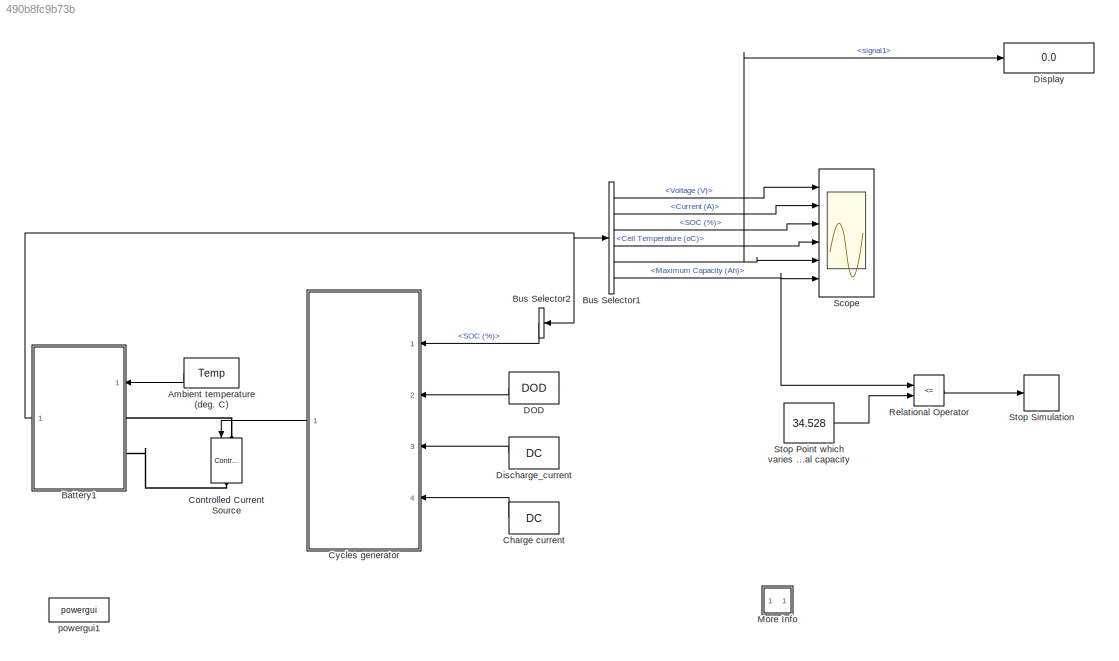
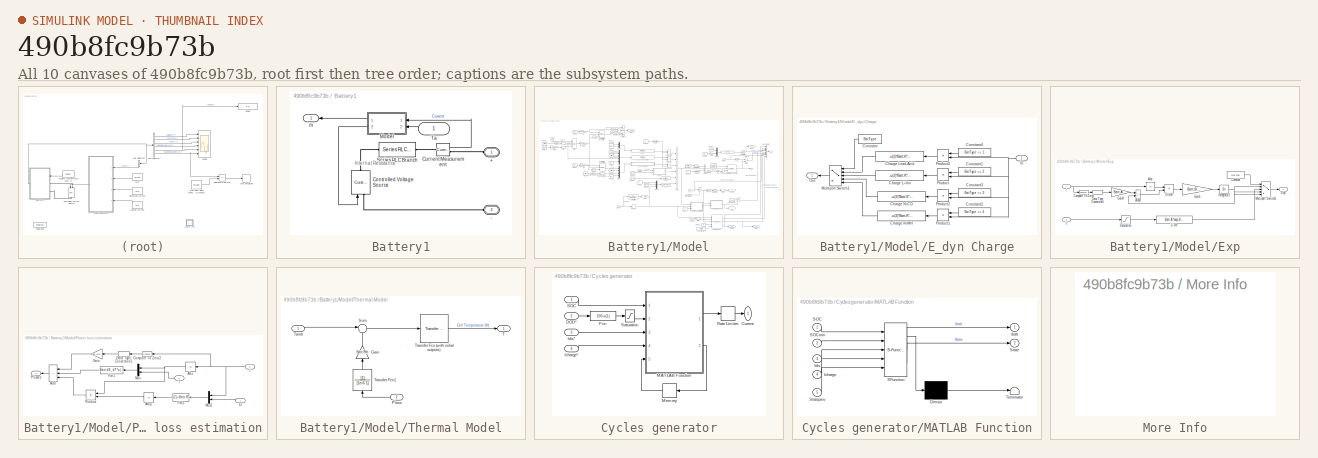
[diagram: thumbnail index - all 10 canvases of the model, root first then tree order]
MODEL slx_490b8fc9b73b
KIND model
CONFIG AbsTol = auto
CONFIG EnableMultiTasking = on
CONFIG FixedStep = auto
CONFIG MaxStep = auto
CONFIG MinStep = auto
CONFIG RelTol = 1e-3
CONFIG SampleTimeConstraint = Unconstrained
CONFIG SolverName = ode23tb
CONFIG StartTime = 0.0
CONFIG StopTime = inf
BLOCK [Constant] Ambient temperature (deg. C)
  NameLocation = top
  Value = Temp
BLOCK [SubSystem] Battery1
  AncestorBlock = spsBatteryLib/Battery
  CloseFcn = sps_rtmsupport('CloseFcn',gcbh);
  CopyFcn = sps_rtmsupport('CopyFcn',gcbh);
  DeleteFcn = sps_rtmsupport('DeleteFcn',gcbh);
  DialogController = POWERSYS.PowerSysDialog
  InitFcn = BatteryCback(gcb,1)
  LoadFcn = sps_rtmsupport('LoadFcn',gcbh); BatteryLoadFcn(gcb)
  ModelCloseFcn = sps_rtmsupport('ModelCloseFcn',gcbh);
  NameChangeFcn = sps_rtmsupport('NameChangeFcn',gcbh);
  OpenFcn = sps_rtmsupport('OpenFcn',gcbh, [1,2,3,4,9,18]);
  Ports = [1, 1, 0, 0, 0, 2]
  PostSaveFcn = sps_rtmsupport('PostSaveFcn',gcbh);
  PreCopyFcn = sps_rtmsupport('PreCopyFcn',gcbh);
  PreDeleteFcn = sps_rtmsupport('PreDeleteFcn',gcbh);
  PreSaveFcn = sps_rtmsupport('PreSaveFcn',gcbh);
  RequestExecContextInheritance = off
  StartFcn = sps_rtmsupport('StartFcn',gcbh);
  StopFcn = sps_rtmsupport('StopFcn',gcbh);
  UndoDeleteFcn = sps_rtmsupport('UndoDeleteFcn',gcbh);
BLOCK [PMIOPort] Battery1/+
  NameLocation = top
  Side = Left
  Tag = PMCPort
BLOCK [PMIOPort] Battery1/-
  NameLocation = top
  Port = 2
  Side = Left
  Tag = PMCPort
BLOCK [Reference] Battery1/Controlled Voltage Source  REF=spsControlledVoltageSourceLib/Controlled Voltage Source
  NameLocation = right
  Ports = [1, 0, 0, 0, 0, 1, 1]
  SourceBlock = spsControlledVoltageSourceLib/Controlled Voltage Source
  SourceProductBaseCode = PS
  SourceType = Controlled Voltage Source
BLOCK [Reference] Battery1/Current Measurement  REF=spsCurrentMeasurementLib/Current Measurement
  Ports = [0, 1, 0, 0, 0, 1, 1]
  SourceBlock = spsCurrentMeasurementLib/Current Measurement
  SourceProductBaseCode = PS
  SourceType = Current Measurement
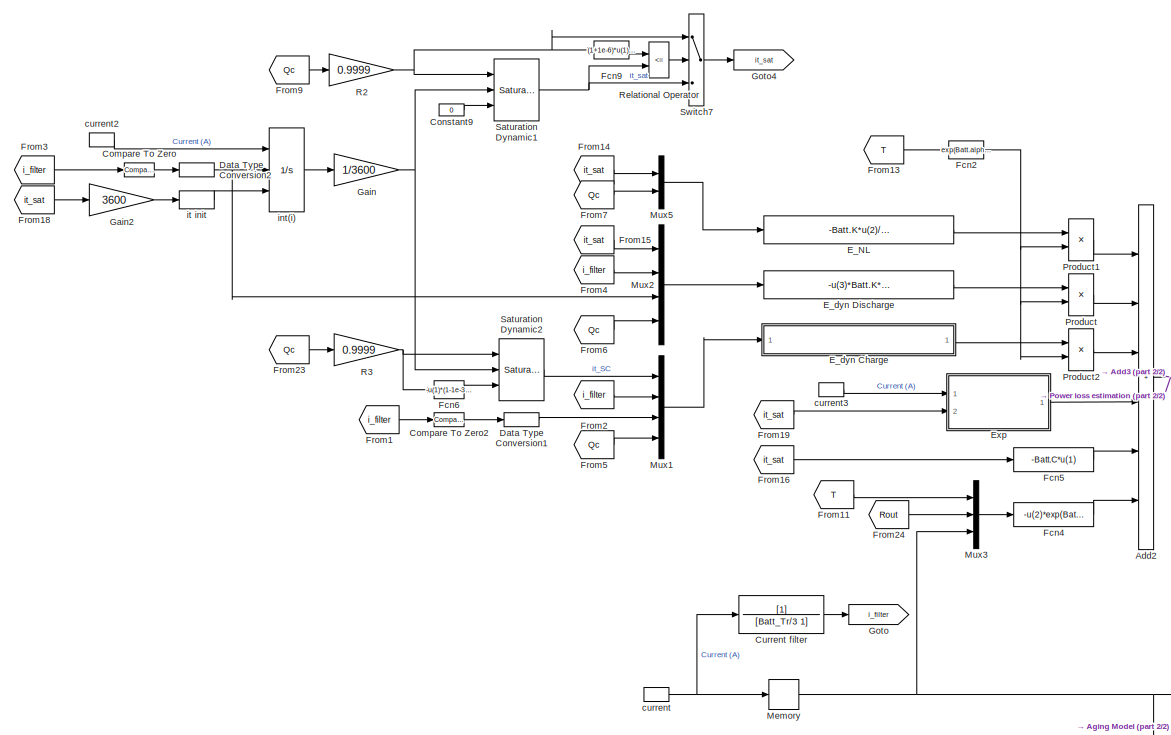
[diagram: Battery1/Model - part 1/2, left side, full height]
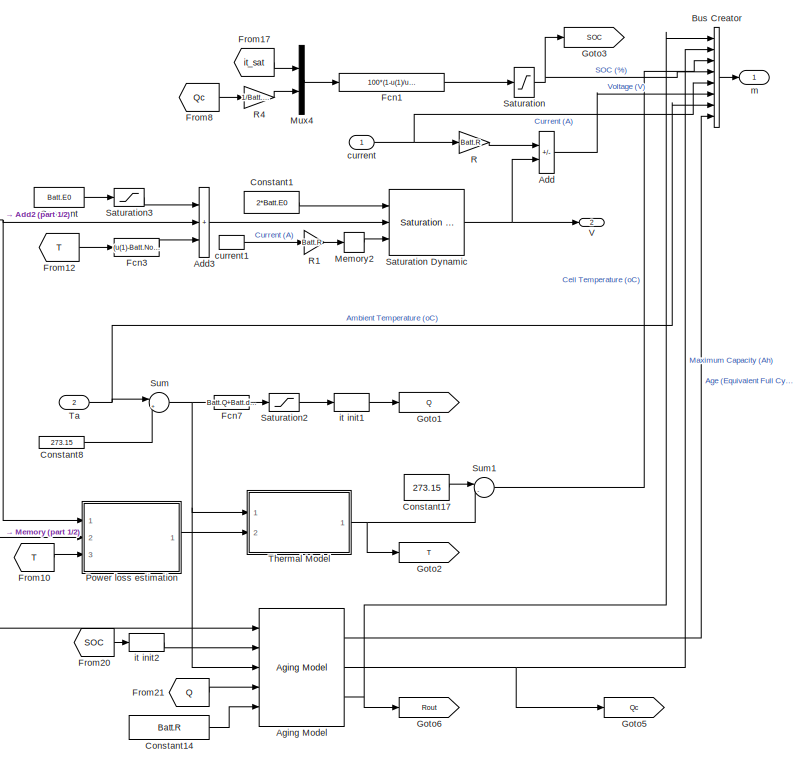
[diagram: Battery1/Model - part 2/2, right side, full height]
BLOCK [SubSystem] Battery1/Model
  AncestorBlock = spsBatteryModel/Continuous thermal aging
  NameLocation = top
  Ports = [2, 2]
  RequestExecContextInheritance = off
BLOCK [Sum] Battery1/Model/Add
  IconShape = rectangular
  Inputs = -+
  Ports = [2, 1]
BLOCK [Sum] Battery1/Model/Add2
  IconShape = rectangular
  Inputs = ++++++
  Ports = [6, 1]
BLOCK [Sum] Battery1/Model/Add3
  IconShape = rectangular
  Inputs = +++
  Ports = [3, 1]
BLOCK [Reference] Battery1/Model/Aging Model  REF=spsBatteryModel/Aging Model
  Ports = [5, 3]
  SourceBlock = spsBatteryModel/Aging Model
  SourceProductBaseCode = PS
  SourceType = SubSystem
BLOCK [BusCreator] Battery1/Model/Bus Creator
  DisplayOption = bar
  InheritFromInputs = on
  Inputs = 8
  Ports = [8, 1]
BLOCK [Reference] Battery1/Model/Compare To Zero  REF=simulink/Logic and Bit
Operations/Compare
To Zero
  Ports = [1, 1]
  SourceBlock = simulink/Logic and Bit\nOperations/Compare\nTo Zero
  SourceProductBaseCode = SL
  SourceType = Compare To Zero
BLOCK [Reference] Battery1/Model/Compare To Zero2  REF=simulink/Logic and Bit
Operations/Compare
To Zero
  Ports = [1, 1]
  SourceBlock = simulink/Logic and Bit\nOperations/Compare\nTo Zero
  SourceProductBaseCode = SL
  SourceType = Compare To Zero
BLOCK [Constant] Battery1/Model/Constant
  NameLocation = top
  Value = Batt.E0
BLOCK [Constant] Battery1/Model/Constant1
  NameLocation = top
  Value = 2*Batt.E0
BLOCK [Constant] Battery1/Model/Constant14
  Value = Batt.R
BLOCK [Constant] Battery1/Model/Constant17
  Value = 273.15
BLOCK [Constant] Battery1/Model/Constant8
  Value = 273.15
BLOCK [Constant] Battery1/Model/Constant9
  Value = 0
BLOCK [TransferFcn] Battery1/Model/Current filter
  Denominator = [Batt_Tr/3 1]
BLOCK [DataTypeConversion] Battery1/Model/Data Type Conversion1
  RndMeth = Floor
  SaturateOnIntegerOverflow = off
BLOCK [DataTypeConversion] Battery1/Model/Data Type Conversion2
  RndMeth = Floor
  SaturateOnIntegerOverflow = off
BLOCK [Fcn] Battery1/Model/E_NL
  Expr = -Batt.K*u(2)/(u(2)-u(1))*u(1)
  NameLocation = top
BLOCK [SubSystem] Battery1/Model/E_dyn Charge
  NameLocation = top
  Ports = [1, 1]
  RequestExecContextInheritance = off
BLOCK [Fcn] Battery1/Model/E_dyn Charge/Charge Lead-Acid
  Expr = -u(3)*Batt.K*u(2)*(Batt.Q/(u(1)+Batt.Q*Batt.kc))
BLOCK [Fcn] Battery1/Model/E_dyn Charge/Charge Li-Ion
  Expr = -u(3)*Batt.K*u(2)*u(4)/(u(1)+u(4)*Batt.kc)
BLOCK [Fcn] Battery1/Model/E_dyn Charge/Charge NiCD
  Expr = -u(3)*Batt.K*u(2)*(Batt.Q/(abs(u(1))+Batt.Q*Batt.kc))
BLOCK [Fcn] Battery1/Model/E_dyn Charge/Charge NiMH
  Expr = -u(3)*Batt.K*u(2)*(Batt.Q/(abs(u(1))+Batt.Q*Batt.kc))
BLOCK [Constant] Battery1/Model/E_dyn Charge/Constant
  NameLocation = top
  Value = BatType
BLOCK [Constant] Battery1/Model/E_dyn Charge/Constant1
  NameLocation = top
  OutDataTypeStr = double
  Value = BatType == 2
BLOCK [Constant] Battery1/Model/E_dyn Charge/Constant2
  NameLocation = top
  OutDataTypeStr = double
  Value = BatType == 4
BLOCK [Constant] Battery1/Model/E_dyn Charge/Constant3
  NameLocation = top
  OutDataTypeStr = double
  Value = BatType == 3
BLOCK [Constant] Battery1/Model/E_dyn Charge/Constant4
  NameLocation = top
  OutDataTypeStr = double
  Value = BatType == 1
BLOCK [Inport] Battery1/Model/E_dyn Charge/In
BLOCK [MultiPortSwitch] Battery1/Model/E_dyn Charge/Multiport Switch1
  InputSameDT = off
  Inputs = 4
  NameLocation = top
  Ports = [5, 1]
  SaturateOnIntegerOverflow = off
BLOCK [Outport] Battery1/Model/E_dyn Charge/Out
  VectorParamsAs1DForOutWhenUnconnected = off
BLOCK [Product] Battery1/Model/E_dyn Charge/Product
  NameLocation = top
  Ports = [2, 1]
  RndMeth = Zero
BLOCK [Product] Battery1/Model/E_dyn Charge/Product1
  NameLocation = top
  Ports = [2, 1]
  RndMeth = Zero
BLOCK [Product] Battery1/Model/E_dyn Charge/Product2
  NameLocation = top
  Ports = [2, 1]
  RndMeth = Zero
BLOCK [Product] Battery1/Model/E_dyn Charge/Product3
  NameLocation = top
  Ports = [2, 1]
  RndMeth = Zero
BLOCK [Fcn] Battery1/Model/E_dyn Discharge
  Expr = -u(3)*Batt.K*u(2)*u(4)/(u(4)-u(1))
  NameLocation = top
BLOCK [SubSystem] Battery1/Model/Exp
  NameLocation = top
  Ports = [2, 1]
  RequestExecContextInheritance = off
BLOCK [Abs] Battery1/Model/Exp/Abs
  SaturateOnIntegerOverflow = off
BLOCK [Sum] Battery1/Model/Exp/Add3
  IconShape = rectangular
  Inputs = +-
  Ports = [2, 1]
BLOCK [Reference] Battery1/Model/Exp/Compare To Zero2  REF=simulink/Logic and Bit
Operations/Compare
To Zero
  Ports = [1, 1]
  SourceBlock = simulink/Logic and Bit\nOperations/Compare\nTo Zero
  SourceProductBaseCode = SL
  SourceType = Compare To Zero
BLOCK [Constant] Battery1/Model/Exp/Constant
  Value = BatType
BLOCK [DataTypeConversion] Battery1/Model/Exp/Data Type Conversion1
  RndMeth = Floor
  SaturateOnIntegerOverflow = off
BLOCK [Product] Battery1/Model/Exp/Divide
  Inputs = **
  Ports = [2, 1]
BLOCK [Outport] Battery1/Model/Exp/Exp
  NameLocation = top
  VectorParamsAs1DForOutWhenUnconnected = off
BLOCK [Gain] Battery1/Model/Exp/Gain1
  Gain = Batt.B/3600
  NameLocation = top
BLOCK [Gain] Battery1/Model/Exp/Gain4
  Gain = Batt.A
  NameLocation = top
BLOCK [Integrator] Battery1/Model/Exp/Integrator2
  InitialCondition = Batt.A*exp(-Batt.B*(1-SOC/100)*Batt.Q)
  Ports = [1, 1]
BLOCK [Fcn] Battery1/Model/Exp/Li-Ion
  Expr = Batt.A*exp(-Batt.B*u(1))
  NameLocation = top
BLOCK [MultiPortSwitch] Battery1/Model/Exp/Multiport Switch1
  InputSameDT = off
  Inputs = 4
  Ports = [5, 1]
  SaturateOnIntegerOverflow = off
BLOCK [Saturate] Battery1/Model/Exp/Saturation
  LowerLimit = -inf
  UpperLimit = Batt.Qmax*(1/Batt.lambda)
BLOCK [Inport] Battery1/Model/Exp/i
BLOCK [Inport] Battery1/Model/Exp/it
  Port = 2
BLOCK [Fcn] Battery1/Model/Fcn1
  Expr = 100*(1-u(1)/u(2))
BLOCK [Fcn] Battery1/Model/Fcn2
  Expr = exp(Batt.alpha*((1/u(1))-(1/Batt.NomT)))
BLOCK [Fcn] Battery1/Model/Fcn3
  Expr = (u(1)-Batt.NomT)*Batt.dE_dT
BLOCK [Fcn] Battery1/Model/Fcn4
  Expr = -u(2)*exp(Batt.beta*((1/u(1))-(1/Batt.NomT)))*u(3)+Batt.R*u(3)
BLOCK [Fcn] Battery1/Model/Fcn5
  Expr = -Batt.C*u(1)
BLOCK [Fcn] Battery1/Model/Fcn6
  Expr = -u(1)*(1-1e-3)*Batt.kcsat*0.9999
BLOCK [Fcn] Battery1/Model/Fcn7
  Expr = Batt.Q+Batt.dQ_dT*(u(1)-Batt.NomT)
BLOCK [Fcn] Battery1/Model/Fcn9
  Expr = (1+1e-6)*u(1)*(1/Batt.lambda)/0.9999
BLOCK [From] Battery1/Model/From1
  GotoTag = i_filter
BLOCK [From] Battery1/Model/From10
  GotoTag = T
BLOCK [From] Battery1/Model/From11
  GotoTag = T
BLOCK [From] Battery1/Model/From12
  GotoTag = T
BLOCK [From] Battery1/Model/From13
  GotoTag = T
BLOCK [From] Battery1/Model/From14
  GotoTag = it_sat
BLOCK [From] Battery1/Model/From15
  GotoTag = it_sat
BLOCK [From] Battery1/Model/From16
  GotoTag = it_sat
BLOCK [From] Battery1/Model/From17
  GotoTag = it_sat
BLOCK [From] Battery1/Model/From18
  GotoTag = it_sat
BLOCK [From] Battery1/Model/From19
  GotoTag = it_sat
  NameLocation = top
BLOCK [From] Battery1/Model/From2
  GotoTag = i_filter
BLOCK [From] Battery1/Model/From20
  GotoTag = SOC
BLOCK [From] Battery1/Model/From21
  GotoTag = Q
BLOCK [From] Battery1/Model/From23
  GotoTag = Qc
BLOCK [From] Battery1/Model/From24
  GotoTag = Rout
BLOCK [From] Battery1/Model/From3
  GotoTag = i_filter
BLOCK [From] Battery1/Model/From4
  GotoTag = i_filter
BLOCK [From] Battery1/Model/From5
  GotoTag = Qc
BLOCK [From] Battery1/Model/From6
  GotoTag = Qc
BLOCK [From] Battery1/Model/From7
  GotoTag = Qc
BLOCK [From] Battery1/Model/From8
  GotoTag = Qc
BLOCK [From] Battery1/Model/From9
  GotoTag = Qc
BLOCK [Gain] Battery1/Model/Gain
  Gain = 1/3600
BLOCK [Gain] Battery1/Model/Gain2
  Gain = 3600
  NameLocation = top
BLOCK [Goto] Battery1/Model/Goto
  GotoTag = i_filter
BLOCK [Goto] Battery1/Model/Goto1
  GotoTag = Q
BLOCK [Goto] Battery1/Model/Goto2
  GotoTag = T
BLOCK [Goto] Battery1/Model/Goto3
  GotoTag = SOC
BLOCK [Goto] Battery1/Model/Goto4
  GotoTag = it_sat
BLOCK [Goto] Battery1/Model/Goto5
  GotoTag = Qc
BLOCK [Goto] Battery1/Model/Goto6
  GotoTag = Rout
BLOCK [Memory] Battery1/Model/Memory
BLOCK [Memory] Battery1/Model/Memory2
  InheritSampleTime = on
  NameLocation = top
BLOCK [Mux] Battery1/Model/Mux1
  DisplayOption = bar
  Ports = [4, 1]
BLOCK [Mux] Battery1/Model/Mux2
  DisplayOption = bar
  Ports = [4, 1]
BLOCK [Mux] Battery1/Model/Mux3
  DisplayOption = bar
  Inputs = 3
  Ports = [3, 1]
BLOCK [Mux] Battery1/Model/Mux4
  DisplayOption = bar
  Inputs = 2
  Ports = [2, 1]
BLOCK [Mux] Battery1/Model/Mux5
  DisplayOption = bar
  Inputs = 2
  Ports = [2, 1]
BLOCK [SubSystem] Battery1/Model/Power loss estimation
  Ports = [3, 1]
  RequestExecContextInheritance = off
BLOCK [Abs] Battery1/Model/Power loss estimation/Abs
  SaturateOnIntegerOverflow = off
BLOCK [Abs] Battery1/Model/Power loss estimation/Abs1
  SaturateOnIntegerOverflow = off
BLOCK [Sum] Battery1/Model/Power loss estimation/Add
  IconShape = rectangular
  Inputs = +++
  NameLocation = top
  Ports = [3, 1]
BLOCK [Reference] Battery1/Model/Power loss estimation/Compare To Zero2  REF=simulink/Logic and Bit
Operations/Compare
To Zero
  NameLocation = top
  Ports = [1, 1]
  SourceBlock = simulink/Logic and Bit\nOperations/Compare\nTo Zero
  SourceProductBaseCode = SL
  SourceType = Compare To Zero
BLOCK [DataTypeConversion] Battery1/Model/Power loss estimation/Data Type Conversion1
  NameLocation = top
  RndMeth = Floor
  SaturateOnIntegerOverflow = off
BLOCK [Inport] Battery1/Model/Power loss estimation/El
BLOCK [Fcn] Battery1/Model/Power loss estimation/Fcn1
  Expr = Batt.dE_dT*u(1)*u(2)
  NameLocation = top
BLOCK [Fcn] Battery1/Model/Power loss estimation/Fcn3
  Expr = -u(2)+Batt.R*u(1)
  NameLocation = top
BLOCK [Gain] Battery1/Model/Power loss estimation/Gain
  Gain = Batt.DeltaP
  NameLocation = top
BLOCK [Mux] Battery1/Model/Power loss estimation/Mux
  DisplayOption = bar
  Inputs = 2
  NameLocation = top
  Ports = [2, 1]
BLOCK [Mux] Battery1/Model/Power loss estimation/Mux2
  DisplayOption = bar
  Inputs = 2
  NameLocation = top
  Ports = [2, 1]
BLOCK [Outport] Battery1/Model/Power loss estimation/Plosses
  VectorParamsAs1DForOutWhenUnconnected = off
BLOCK [Product] Battery1/Model/Power loss estimation/Product
  NameLocation = top
  Ports = [2, 1]
BLOCK [Inport] Battery1/Model/Power loss estimation/T
  Port = 3
BLOCK [Inport] Battery1/Model/Power loss estimation/i
  Port = 2
BLOCK [Product] Battery1/Model/Product
  Ports = [2, 1]
BLOCK [Product] Battery1/Model/Product1
  Ports = [2, 1]
BLOCK [Product] Battery1/Model/Product2
  Ports = [2, 1]
BLOCK [Gain] Battery1/Model/R
  Gain = Batt.R
  NameLocation = top
BLOCK [Gain] Battery1/Model/R1
  Gain = Batt.R
  NameLocation = top
BLOCK [Gain] Battery1/Model/R2
  Gain = 0.9999
  NameLocation = top
BLOCK [Gain] Battery1/Model/R3
  Gain = 0.9999
  NameLocation = top
BLOCK [Gain] Battery1/Model/R4
  Gain = 1/Batt.lambda
  NameLocation = top
BLOCK [RelationalOperator] Battery1/Model/Relational Operator
  InputSameDT = off
  Operator = <=
  Ports = [2, 1]
  RndMeth = Simplest
BLOCK [Saturate] Battery1/Model/Saturation
  LowerLimit = 0
  UpperLimit = 100
BLOCK [Reference] Battery1/Model/Saturation Dynamic  REF=simulink/Discontinuities/Saturation
Dynamic
  Ports = [3, 1]
  SourceBlock = simulink/Discontinuities/Saturation\nDynamic
  SourceProductBaseCode = SL
  SourceType = Saturation Dynamic
BLOCK [Reference] Battery1/Model/Saturation Dynamic1  REF=simulink/Discontinuities/Saturation
Dynamic
  Ports = [3, 1]
  SourceBlock = simulink/Discontinuities/Saturation\nDynamic
  SourceProductBaseCode = SL
  SourceType = Saturation Dynamic
BLOCK [Reference] Battery1/Model/Saturation Dynamic2  REF=simulink/Discontinuities/Saturation
Dynamic
  Ports = [3, 1]
  SourceBlock = simulink/Discontinuities/Saturation\nDynamic
  SourceProductBaseCode = SL
  SourceType = Saturation Dynamic
BLOCK [Saturate] Battery1/Model/Saturation2
  LowerLimit = 0
  UpperLimit = max(NomQ,Batt.Q)
BLOCK [Saturate] Battery1/Model/Saturation3
  LowerLimit = -inf
  UpperLimit = Batt.Va-Batt.dE_dT*(Batt.Tci-Batt.NomT)-Batt.A
BLOCK [Sum] Battery1/Model/Sum
  Inputs = |++
  Ports = [2, 1]
BLOCK [Sum] Battery1/Model/Sum1
  Inputs = |-+
  Ports = [2, 1]
BLOCK [Switch] Battery1/Model/Switch7
  Criteria = u2 > Threshold
  InputSameDT = off
  SaturateOnIntegerOverflow = off
BLOCK [Inport] Battery1/Model/Ta
  Port = 2
BLOCK [SubSystem] Battery1/Model/Thermal Model
  Ports = [2, 1]
  RequestExecContextInheritance = off
  VariantControl = Continuous
BLOCK [Gain] Battery1/Model/Thermal Model/Gain
  Gain = Batt.Rth
  NameLocation = right
BLOCK [Inport] Battery1/Model/Thermal Model/Ploss
  Port = 2
BLOCK [Sum] Battery1/Model/Thermal Model/Sum
  Inputs = |++
  Ports = [2, 1]
BLOCK [Outport] Battery1/Model/Thermal Model/T
  NameLocation = top
  VectorParamsAs1DForOutWhenUnconnected = off
BLOCK [Inport] Battery1/Model/Thermal Model/Tamb
BLOCK [Reference] Battery1/Model/Thermal Model/Transfer Fcn (with initial outputs)  REF=simulink_extras/Additional
Linear/Transfer Fcn
(with initial outputs)
  Ports = [1, 1]
  SourceBlock = simulink_extras/Additional\nLinear/Transfer Fcn\n(with initial outputs)
  SourceProductBaseCode = SL
  SourceType = Transfer Function with Initial Outputs
BLOCK [TransferFcn] Battery1/Model/Thermal Model/Transfer Fcn1
  Denominator = [1e-6 1]
  NameLocation = right
BLOCK [Outport] Battery1/Model/V
  Port = 2
  VectorParamsAs1DForOutWhenUnconnected = off
BLOCK [Inport] Battery1/Model/current
BLOCK [InportShadow] Battery1/Model/current 
  NameLocation = top
BLOCK [InportShadow] Battery1/Model/current1
BLOCK [InportShadow] Battery1/Model/current2
  NameLocation = top
BLOCK [InportShadow] Battery1/Model/current3
BLOCK [Integrator] Battery1/Model/int(i)
  ExternalReset = rising
  InitialCondition = (1-SOC/100)*Q*3600
  InitialConditionSource = external
  LimitOutput = on
  Ports = [3, 1]
  UpperSaturationLimit = Batt.Qmax*3600
BLOCK [Memory] Battery1/Model/it init
  InitialCondition = (1-SOC/100)*Batt.Q*(1/Batt.lambda)*3600
BLOCK [Memory] Battery1/Model/it init1
  InitialCondition = Batt.Q
  NameLocation = top
BLOCK [Memory] Battery1/Model/it init2
  InitialCondition = SOC
  NameLocation = top
BLOCK [Outport] Battery1/Model/m
  VectorParamsAs1DForOutWhenUnconnected = off
BLOCK [Reference] Battery1/Series RLC Branch  REF=spsSeriesRLCBranchLib/Series RLC Branch
  Ports = [0, 0, 0, 0, 0, 1, 1]
  SourceBlock = spsSeriesRLCBranchLib/Series RLC Branch
  SourceProductBaseCode = PS
  SourceType = Series RLC Branch
BLOCK [Inport] Battery1/Ta
BLOCK [Outport] Battery1/m
  NameLocation = top
  VectorParamsAs1DForOutWhenUnconnected = off
BLOCK [BusSelector] Bus Selector1
  OutputSignals = Voltage (V),Current (A),SOC (%),Cell Temperature (oC),signal1,Maximum Capacity  (Ah)
  Ports = [1, 6]
BLOCK [BusSelector] Bus Selector2
  NameLocation = top
  OutputSignals = SOC (%)
  Ports = [1, 1]
BLOCK [Constant] Charge current
  NameLocation = top
  Value = DC
BLOCK [Reference] Controlled Current Source  REF=spsControlledCurrentSourceLib/Controlled Current Source
  NameLocation = left
  Ports = [1, 0, 0, 0, 0, 1, 1]
  SourceBlock = spsControlledCurrentSourceLib/Controlled Current Source
  SourceProductBaseCode = PS
  SourceType = Controlled Current Source
BLOCK [SubSystem] Cycles generator
  Ports = [4, 1]
  RequestExecContextInheritance = off
BLOCK [Outport] Cycles generator/Current
  NameLocation = top
  VectorParamsAs1DForOutWhenUnconnected = off
BLOCK [Inport] Cycles generator/DOD*
  Port = 2
BLOCK [Fcn] Cycles generator/Fcn
  Expr = 100-u(1)
BLOCK [Inport] Cycles generator/Icharge*
  Port = 4
BLOCK [Inport] Cycles generator/Idis*
  Port = 3
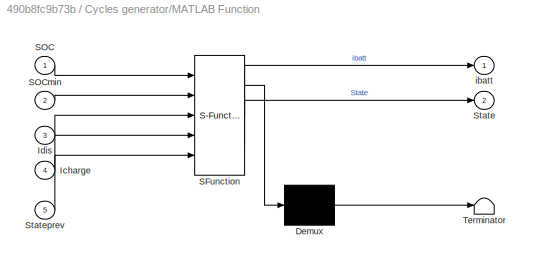
BLOCK [SubSystem] Cycles generator/MATLAB Function
  ErrorFcn = Stateflow.Translate.translate
  PermitHierarchicalResolution = ExplicitOnly
  Ports = [5, 2]
  RequestExecContextInheritance = off
  SFBlockType = MATLAB Function
  TreatAsAtomicUnit = on
BLOCK [Demux] Cycles generator/MATLAB Function/ Demux 
  Outputs = 1
  Ports = [1, 1]
BLOCK [S-Function] Cycles generator/MATLAB Function/ SFunction 
  EnableBusSupport = on
  FunctionName = sf_sfun
  PortCounts = [5 3]
  Ports = [5, 3]
  SFcnIsStateOwnerBlock = off
  SFunctionDeploymentMode = off
  Tag = Stateflow S-Function 2
BLOCK [Terminator] Cycles generator/MATLAB Function/ Terminator 
BLOCK [Inport] Cycles generator/MATLAB Function/Icharge
  Port = 4
BLOCK [Inport] Cycles generator/MATLAB Function/Idis
  Port = 3
BLOCK [Inport] Cycles generator/MATLAB Function/SOC
BLOCK [Inport] Cycles generator/MATLAB Function/SOCmin
  Port = 2
BLOCK [Outport] Cycles generator/MATLAB Function/State
  Port = 2
  VectorParamsAs1DForOutWhenUnconnected = off
BLOCK [Inport] Cycles generator/MATLAB Function/Stateprev
  Port = 5
BLOCK [Outport] Cycles generator/MATLAB Function/ibatt
  VectorParamsAs1DForOutWhenUnconnected = off
BLOCK [Memory] Cycles generator/Memory
  InitialCondition = 1
BLOCK [RateLimiter] Cycles generator/Rate Limiter
  FallingSlewLimit = -1000
  RisingSlewLimit = 1000
  SampleTimeMode = inherited
BLOCK [Inport] Cycles generator/SOC
BLOCK [Saturate] Cycles generator/Saturation
  LowerLimit = 1
  UpperLimit = 98
BLOCK [Constant] DOD
  NameLocation = top
  Value = DOD
BLOCK [Constant] Discharge_current
  NameLocation = top
  Value = DC
BLOCK [Display] Display
  Decimation = 1
  Ports = [1]
BLOCK [SubSystem] More Info
  OpenFcn = showdemo(bdroot(gcb))
  Ports = []
  RequestExecContextInheritance = off
BLOCK [RelationalOperator] Relational Operator
  InputSameDT = off
  Operator = <=
  OutDataTypeStr = boolean
  Ports = [2, 1]
  RndMeth = Simplest
BLOCK [Scope] Scope
  Floating = off
  NumInputPorts = 6
  Ports = [6]
  ScopeSpecificationString = Simulink.scopes.TimeScopeBlockCfg('CurrentConfiguration', extmgr.ConfigurationSet(extmgr.Configuration('Core','General UI',true),extmgr.Configuration('Core','Source UI',true),extmgr.Configuration('Sources','WiredSimulink',true,'DataLogging',true,'DataLoggingSaveFormat','Structure'),extmgr.Configuration('Visuals','Time Domain',true,'SerializedDisplays',{struct('MinYLimReal','10.12833','MaxYLimReal'...<+4917ch>
BLOCK [Constant] Stop Point which varies by the Battery you use. Here is value of 80% of the original capacity
  Value = 34.528
BLOCK [Stop] Stop Simulation
BLOCK [Reference] powergui1  REF=spspowerguiLib/powergui
  Ports = []
  SourceBlock = spspowerguiLib/powergui
  SourceProductBaseCode = PS
  SourceType = PSB option menu block
ANNOTATION Battery1: Internal Resistance
LINE Ambient temperature (deg. C):1 -> Battery1:1
NET Battery1:1 -> Bus Selector1:1, Bus Selector2:1
LINE Bus Selector1:1 -> Scope:1
LINE Bus Selector1:2 -> Scope:2
LINE Bus Selector1:3 -> Scope:3
LINE Bus Selector1:4 -> Scope:4
NET Bus Selector1:5 -> Display:1, Scope:5
NET Bus Selector1:6 -> Relational Operator:1, Scope:6
LINE Bus Selector2:1 -> Cycles generator:1
LINE Charge current:1 -> Cycles generator:4
LINE Cycles generator/DOD*:1 -> Cycles generator/Fcn:1
LINE Cycles generator/Fcn:1 -> Cycles generator/Saturation:1
LINE Cycles generator/Icharge*:1 -> Cycles generator/MATLAB Function:4
LINE Cycles generator/Idis*:1 -> Cycles generator/MATLAB Function:3
LINE Cycles generator/MATLAB Function:1 -> Cycles generator/Rate Limiter:1
LINE Cycles generator/MATLAB Function:2 -> Cycles generator/Memory:1
LINE Cycles generator/Memory:1 -> Cycles generator/MATLAB Function:5
LINE Cycles generator/Rate Limiter:1 -> Cycles generator/Current:1
LINE Cycles generator/SOC:1 -> Cycles generator/MATLAB Function:1
LINE Cycles generator/Saturation:1 -> Cycles generator/MATLAB Function:2
LINE Cycles generator:1 -> Controlled Current Source:1
LINE DOD:1 -> Cycles generator:2
LINE Discharge_current:1 -> Cycles generator:3
LINE Relational Operator:1 -> Stop Simulation:1
LINE Stop Point which varies by the Battery you use. Here is value of 80% of the original capacity:1 -> Relational Operator:2
PLINE Battery1:LConn1 -- Controlled Current Source:LConn1
PLINE Battery1:LConn2 -- Controlled Current Source:RConn1
note: NET lines group one-source signal fan-out (src -> all destinations, sorted); 1:1 wires keep LINE
CHART Cycles generator/MATLAB Function states=1 transitions=1
  STATE_LABEL 'eML_blk_kernel()'
  STATE_LABEL 'SCRIPT:\nfunction [ibatt,State] = fcn(SOC,SOCmin,Idis,Icharge,Stateprev)\n%#codegen\nState=Stateprev;\nif(Stateprev==1 && SOC<=SOCmin)\n    State=0;\nend\nif(Stateprev==0 && SOC>=99)\n    State=1;\nend\nif (Stateprev==1)\n    ibatt=Idis;\nelse\n    ibatt=-Icharge;\nend\n'
CHART  states=0 transitions=0
